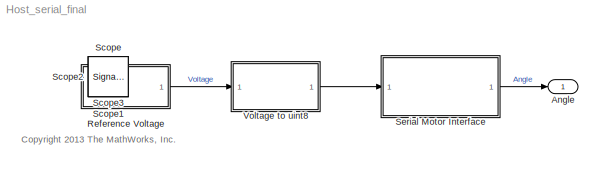
MODEL Host_serial_final
KIND model
CONFIG InitFcn = tstop = str2num(get_param(bdroot,'StopTime'));
CONFIG StopFcn = instrreset
BLOCK [Outport] Angle
  IconDisplay = Port number
  SID = 48
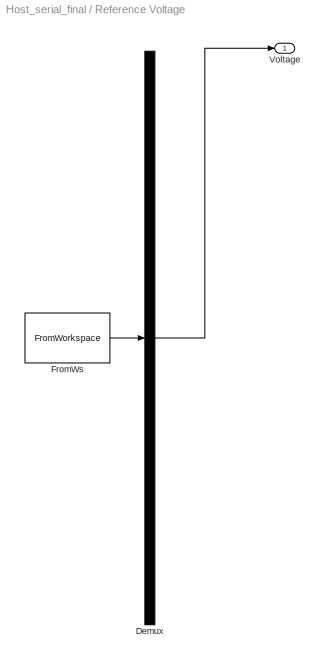
BLOCK [SubSystem] Reference Voltage
  ClipboardFcn = sigbuilder_block('clipboard');
  CloseFcn = sigbuilder_block('close');
  ContinueFcn = sigbuilder_block('continue')
  CopyFcn = sigbuilder_block('copy');
  DeleteFcn = sigbuilder_block('delete');
  FunctionWithSeparateData = off
  LoadFcn = sigbuilder_block('load');
  MaskHideContents = on
  MinAlgLoopOccurrences = off
  ModelCloseFcn = sigbuilder_block('modelClose');
  NameChangeFcn = sigbuilder_block('namechange');
  Opaque = off
  OpenFcn = sigbuilder_block('open',[135 60.75 1183.5 252 ]);
  PauseFcn = sigbuilder_block('pause')
  Ports = [0, 1]
  PreSaveFcn = sigbuilder_block('preSave');
  PropExecContextOutsideSubsystem = off
  RTWSystemCode = Auto
  RequestExecContextInheritance = off
  SID = 36
  StartFcn = sigbuilder_block('start');
  StopFcn = sigbuilder_block('stop');
  Tag = STV Subsys
BLOCK [Demux] Reference Voltage/Demux
  Outputs = 1
  Ports = [1, 1]
  SID = 36:1
  Tag = STV Demux
BLOCK [FromWorkspace] Reference Voltage/FromWs
  SID = 36:2
  SampleTime = 1/100
  SigBuilderData = DataTag0
  Tag = STV FromWs
  VariableName = tuvar
  VnvData = DataTag1
  ZeroCross = on
BLOCK [Outport] Reference Voltage/Voltage
  IconDisplay = Port number
  SID = 36:3
  Tag = STV Outport
BLOCK [SignalViewerScope] Scope
  IOType = viewer
  MaxDataPoints = 7500
  NumInputPorts = 2
  Ports = []
  RefreshTime = 0.035000
  SID = 4
  ShowDataMarkers = off
  ShowLegends = off
  TimeRange = 10
  YMax = 3~100
  YMin = -3~-150
BLOCK [SignalViewerScope] Scope1
  IOType = viewer
  LegendLocations = 0.73608     0.95519     0.22542    0.033553\n  0.753      0.4944     0.20384    0.033553
  LimitDataPoints = off
  MaxDataPoints = 7500
  NumInputPorts = 2
  Ports = []
  RefreshTime = 0.035000
  SID = 49
  SaveName = ScopeData3
  ShowDataMarkers = off
  ShowLegends = on
  TimeRange = 10
  YMax = 1~80
  YMin = -1~-120
  ZoomMode = xonly
BLOCK [SignalViewerScope] Scope2
  IOType = viewer
  MaxDataPoints = 7500
  NumInputPorts = 1
  Ports = []
  RefreshTime = 0.035000
  SID = 17
  SaveName = ScopeData1
  ShowDataMarkers = off
  ShowLegends = off
BLOCK [SignalViewerScope] Scope3
  IOType = viewer
  MaxDataPoints = 7500
  NumInputPorts = 1
  Ports = []
  RefreshTime = 0.035000
  SID = 37
  SaveName = ScopeData2
  ShowDataMarkers = off
  ShowLegends = off
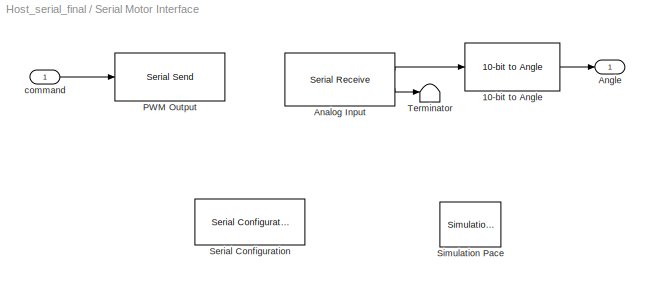
BLOCK [SubSystem] Serial Motor Interface
  FunctionWithSeparateData = off
  MaskHideContents = off
  MinAlgLoopOccurrences = off
  Opaque = off
  Ports = [1, 1]
  PropExecContextOutsideSubsystem = off
  RTWSystemCode = Auto
  RequestExecContextInheritance = off
  SID = 77
BLOCK [Reference] Serial Motor Interface/10-bit to Angle  REF=demoLibrary/Utilities/10-bit to Angle
  Ports = [1, 1]
  SID = 80
  SourceBlock = demoLibrary/Utilities/10-bit to Angle
  SourceType = SubSystem
BLOCK [Reference] Serial Motor Interface/Analog Input  REF=instrumentlib/Serial Receive
  ActionDataUnavailable = Output last received value
  ComPort = COM4
  ComPortMenu = <Please select a port...>
  CustomValue = 0
  DataSize = 1
  DataType = uint16
  EnableBlockingMode = off
  Header = A
  ObjConstructor = serial('COM4');
  Ports = [0, 2]
  SID = 81
  SampleTime = 1/100
  SourceBlock = instrumentlib/Serial Receive
  SourceType = Serial Receive
  Terminator = NULL ('\\0')
BLOCK [Outport] Serial Motor Interface/Angle
  IconDisplay = Port number
  SID = 85
BLOCK [Reference] Serial Motor Interface/PWM Output  REF=instrumentlib/Serial Send
  ComPort = COM4
  ComPortMenu = <Please select a port...>
  EnableBlockingMode = on
  ObjConstructor = serial('COM4');
  Ports = [1]
  SID = 82
  SourceBlock = instrumentlib/Serial Send
  SourceType = Serial Send
  Terminator = <none>
BLOCK [Reference] Serial Motor Interface/Serial Configuration  REF=instrumentlib/Serial Configuration
  BaudRate = 9600
  ByteOrder = BigEndian
  ComPort = COM4
  ComPortMenu = <Please select a port...>
  DataBits = 8
  FlowControl = none
  ObjConstructor = serial('COM4');
  Parity = none
  Ports = []
  Priority = -200000
  SID = 83
  SourceBlock = instrumentlib/Serial Configuration
  SourceType = Serial Configuration
  StopBits = 1
  Timeout = 1
BLOCK [Reference] Serial Motor Interface/Simulation Pace  REF=aerolibanimutils/Simulation Pace
  AttributesFormatString = %<SimulationPace> sec/sec
  OutputPaceError = off
  Ports = []
  SID = 78
  SampleTime = 1/30
  SimulationPace = 1
  SleepMode = MATLAB Thread
  SourceBlock = aerolibanimutils/Simulation Pace
  SourceType = Simulation Pace
BLOCK [Terminator] Serial Motor Interface/Terminator
  SID = 84
BLOCK [Inport] Serial Motor Interface/command
  IconDisplay = Port number
  OutDataTypeStr = uint8
  SID = 79
  SampleTime = 1/10
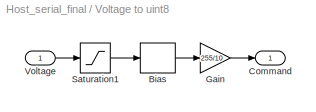
BLOCK [SubSystem] Voltage to uint8
  FunctionWithSeparateData = off
  MaskHideContents = off
  MinAlgLoopOccurrences = off
  Opaque = off
  Ports = [1, 1]
  PropExecContextOutsideSubsystem = off
  RTWSystemCode = Auto
  RequestExecContextInheritance = off
  SID = 38
BLOCK [Bias] Voltage to uint8/Bias
  Bias = 5
  SID = 40
  SaturateOnIntegerOverflow = off
BLOCK [Outport] Voltage to uint8/Command
  IconDisplay = Port number
  SID = 43
BLOCK [Gain] Voltage to uint8/Gain
  Gain = 255/10
  OutDataTypeStr = uint8
  ParamDataTypeStr = Inherit: Inherit via internal rule
  SID = 41
  SaturateOnIntegerOverflow = off
BLOCK [Saturate] Voltage to uint8/Saturation1
  InputPortMap = u0
  LowerLimit = -5
  Ports = [1, 1]
  SID = 42
  UpperLimit = 5
BLOCK [Inport] Voltage to uint8/Voltage
  IconDisplay = Port number
  SID = 39
ANNOTATION (root): <copyright redacted>\n
LINE Reference Voltage/Demux:1 -> Reference Voltage/Voltage:1
LINE Reference Voltage/FromWs:1 -> Reference Voltage/Demux:1
LINE Reference Voltage:1 -> Voltage to uint8:1
LINE Serial Motor Interface/10-bit to Angle:1 -> Serial Motor Interface/Angle:1
LINE Serial Motor Interface/Analog Input:1 -> Serial Motor Interface/10-bit to Angle:1
LINE Serial Motor Interface/Analog Input:2 -> Serial Motor Interface/Terminator:1
LINE Serial Motor Interface/command:1 -> Serial Motor Interface/PWM Output:1
LINE Serial Motor Interface:1 -> Angle:1
LINE Voltage to uint8/Bias:1 -> Voltage to uint8/Gain:1
LINE Voltage to uint8/Gain:1 -> Voltage to uint8/Command:1
LINE Voltage to uint8/Saturation1:1 -> Voltage to uint8/Bias:1
LINE Voltage to uint8/Voltage:1 -> Voltage to uint8/Saturation1:1
LINE Voltage to uint8:1 -> Serial Motor Interface:1
